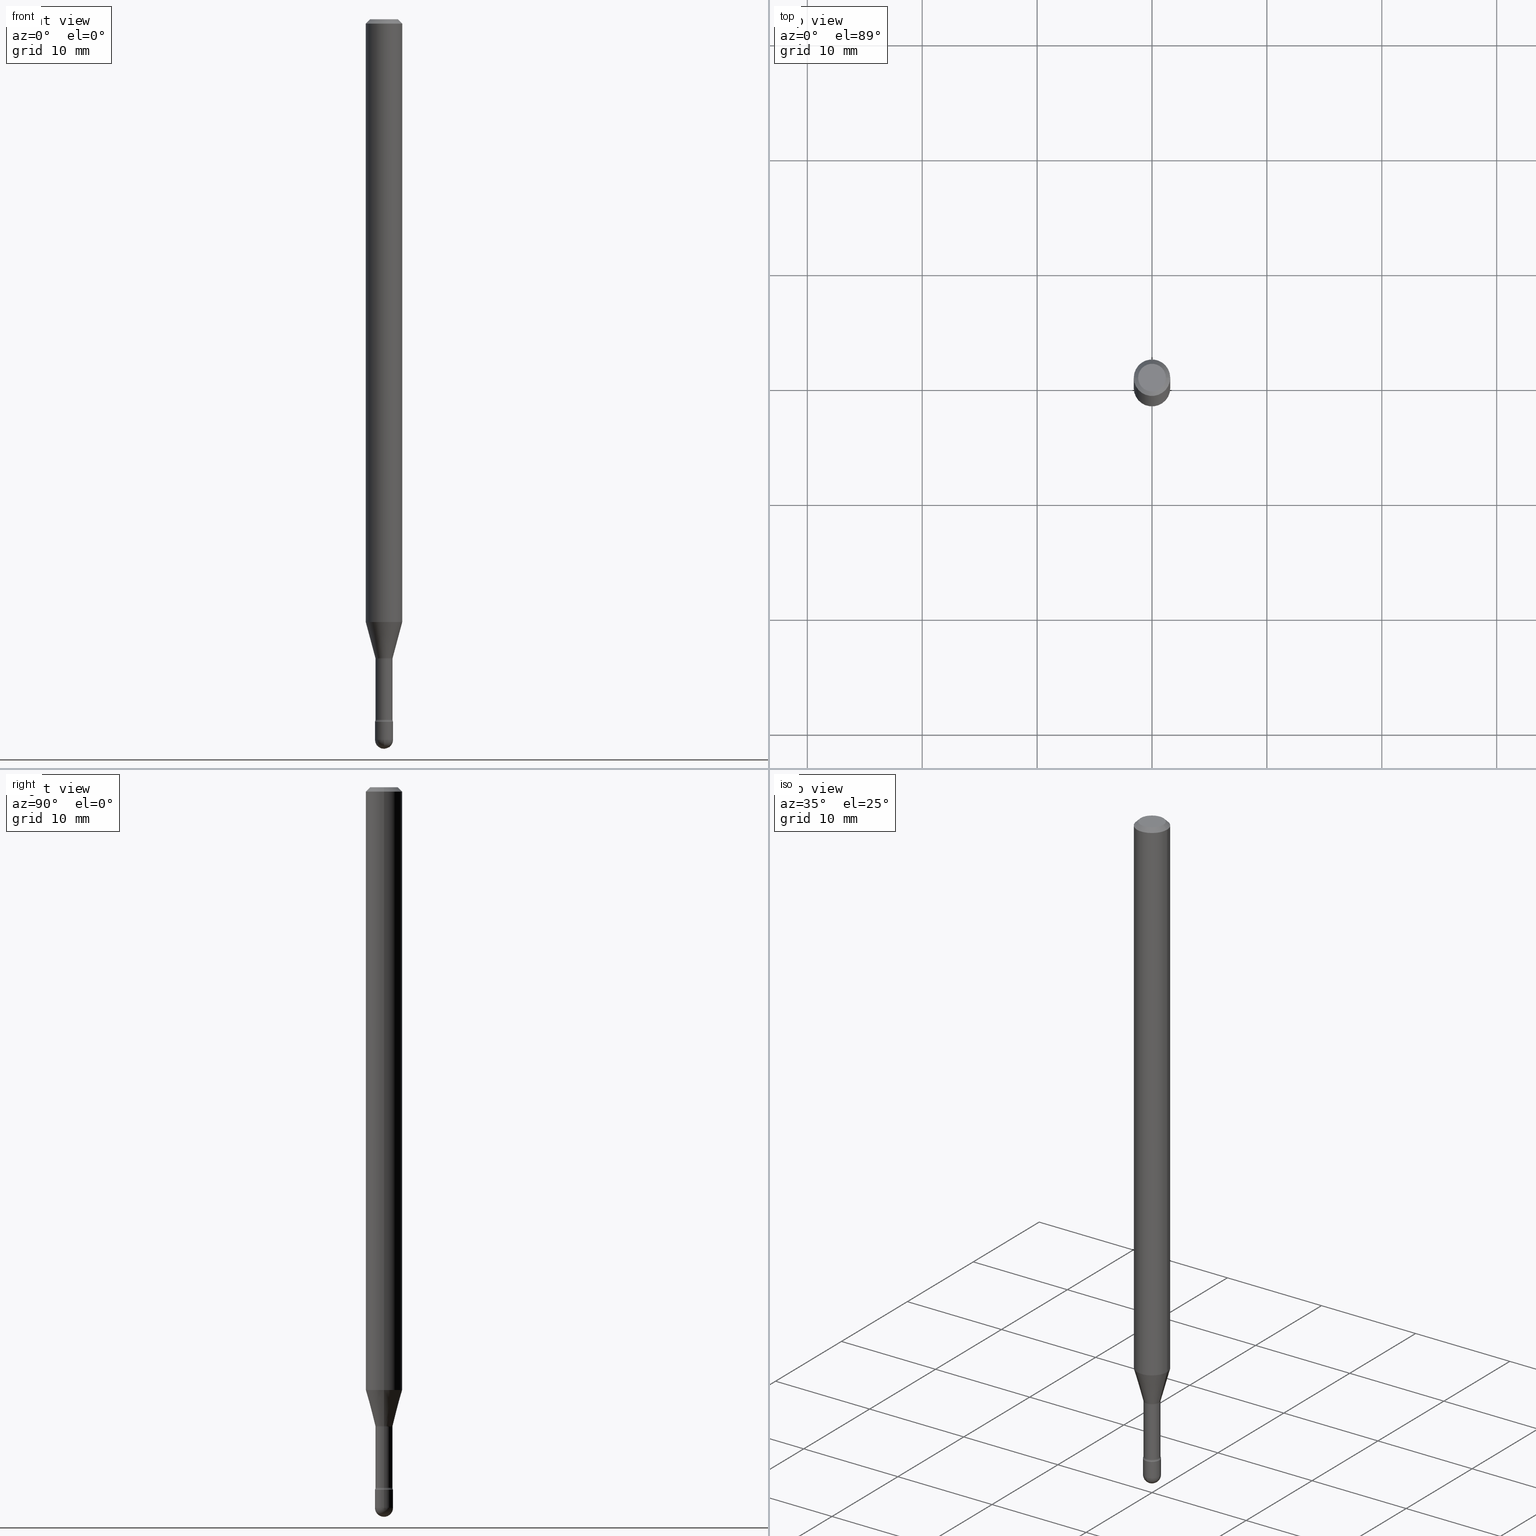
[diagram: canonical four-view strip — front | top / right | iso, engineering-drawing reading convention]
A machine part, canonical four-view strip (front | top / right | iso — engineering-drawing reading convention). The complete STEP part file that produces these views, byte-faithful:
ISO-10303-21;
HEADER;
FILE_DESCRIPTION (( 'STEP AP203' ),
    '1' );
FILE_NAME ('09502.STEP',
    '2024-04-09T23:57:02',
    ( '' ),
    ( '' ),
    'SwSTEP 2.0',
    'SolidWorks 2023',
    '' );
FILE_SCHEMA (( 'CONFIG_CONTROL_DESIGN' ));
ENDSEC;

DATA;
#1 = EDGE_CURVE ( 'NONE', #61, #333, #249, .T. ) ;
#2 =( NAMED_UNIT ( * ) PLANE_ANGLE_UNIT ( ) SI_UNIT ( $, .RADIAN. ) );
#3 = CARTESIAN_POINT ( 'NONE',  ( 2.164718430083331013E-16, 0.03099999999999159331, -2.407000000000000473 ) ) ;
#4 = DIRECTION ( 'NONE',  ( 2.438088387897960049E-29, -3.491481338843145188E-15, -1.000000000000000000 ) ) ;
#5 = DIRECTION ( 'NONE',  ( -2.445468806185136597E-29, 3.491481338843145583E-15, 1.000000000000000000 ) ) ;
#6 = CIRCLE ( 'NONE', #360, 0.03099999999999999978 ) ;
#7 = CARTESIAN_POINT ( 'NONE',  ( 0.03099999999999999978, -8.620467425603726988E-15, -2.407000000000000473 ) ) ;
#8 = AXIS2_PLACEMENT_3D ( 'NONE', #453, #220, #522 ) ;
#9 = DIRECTION ( 'NONE',  ( -2.445468806185136597E-29, 3.491481338843145583E-15, 1.000000000000000000 ) ) ;
#10 = CC_DESIGN_DATE_AND_TIME_ASSIGNMENT ( #125, #516, ( #229 ) ) ;
#11 = ORIENTED_EDGE ( 'NONE', *, *, #306, .T. ) ;
#12 = CARTESIAN_POINT ( 'NONE',  ( 6.037862482471103495E-29, -8.620467425603728566E-15, -2.469000000000000306 ) ) ;
#13 = ORIENTED_EDGE ( 'NONE', *, *, #396, .F. ) ;
#14 = CONICAL_SURFACE ( 'NONE', #548, 0.06250000000000000000, 0.7853981633974483900 ) ;
#15 = ORIENTED_EDGE ( 'NONE', *, *, #59, .F. ) ;
#16 = DIRECTION ( 'NONE',  ( 2.445468806185136597E-29, -3.491481338843145583E-15, -1.000000000000000000 ) ) ;
#17 = ORIENTED_EDGE ( 'NONE', *, *, #234, .F. ) ;
#18 = ADVANCED_FACE ( 'NONE', ( #395 ), #518, .T. ) ;
#19 = DIRECTION ( 'NONE',  ( 1.000000000000000000, -6.982962677686270655E-15, 0.000000000000000000 ) ) ;
#20 = ORIENTED_EDGE ( 'NONE', *, *, #1, .T. ) ;
#21 = CARTESIAN_POINT ( 'NONE',  ( 5.868595753920427457E-29, -8.378799397564700895E-15, -2.399783525791634897 ) ) ;
#22 = ORIENTED_EDGE ( 'NONE', *, *, #59, .T. ) ;
#23 = DIRECTION ( 'NONE',  ( -0.7071067811865475727, 2.468850131082257455E-15, -0.7071067811865474617 ) ) ;
#24 = AXIS2_PLACEMENT_3D ( 'NONE', #325, #156, #328 ) ;
#25 = LOCAL_TIME ( 19, 57, 2.000000000000000000, #244 ) ;
#26 = DIRECTION ( 'NONE',  ( 1.000000000000000000, -6.982962677686264344E-15, 4.883557194083112340E-29 ) ) ;
#27 = EDGE_CURVE ( 'NONE', #381, #295, #515, .T. ) ;
#28 = DATE_AND_TIME ( #478, #442 ) ;
#29 = APPROVAL_DATE_TIME ( #428, #367 ) ;
#30 = LINE ( 'NONE', #211, #327 ) ;
#31 = TOROIDAL_SURFACE ( 'NONE', #513, 0.04415000000000000174, 0.01499999999999999424 ) ;
#32 = CC_DESIGN_APPROVAL ( #367, ( #460 ) ) ;
#33 = APPROVAL_STATUS ( 'not_yet_approved' ) ;
#34 = ADVANCED_FACE ( 'NONE', ( #297 ), #525, .F. ) ;
#35 = SPHERICAL_SURFACE ( 'NONE', #358, 0.03099999999999987488 ) ;
#36 = EDGE_LOOP ( 'NONE', ( #40, #463, #162, #216 ) ) ;
#37 = PERSON_AND_ORGANIZATION ( #198, #312 ) ;
#38 = FACE_OUTER_BOUND ( 'NONE', #150, .T. ) ;
#39 = ORIENTED_EDGE ( 'NONE', *, *, #391, .F. ) ;
#40 = ORIENTED_EDGE ( 'NONE', *, *, #479, .T. ) ;
#41 = APPLICATION_CONTEXT ( 'configuration controlled 3d designs of mechanical parts and assemblies' ) ;
#42 = CARTESIAN_POINT ( 'NONE',  ( -0.03099999999999999978, 2.202682480856310560E-16, -1.524869877979020612E-30 ) ) ;
#43 = AXIS2_PLACEMENT_3D ( 'NONE', #507, #119, #208 ) ;
#44 = EDGE_CURVE ( 'NONE', #93, #443, #477, .T. ) ;
#45 = EDGE_LOOP ( 'NONE', ( #154, #103, #318, #248 ) ) ;
#46 = DIRECTION ( 'NONE',  ( 1.000000000000000000, -6.982962677686267499E-15, 4.884662768193073002E-29 ) ) ;
#47 = EDGE_LOOP ( 'NONE', ( #320, #237, #462, #369 ) ) ;
#48 = DIRECTION ( 'NONE',  ( 0.2588190451025209060, 1.565188264969625123E-15, 0.9659258262890682012 ) ) ;
#49 = CARTESIAN_POINT ( 'NONE',  ( -0.04415000000000000174, -7.339534447806482674E-15, -2.191974787463811136 ) ) ;
#50 = CARTESIAN_POINT ( 'NONE',  ( 5.360405966687044004E-29, -7.653239065644566278E-15, -2.191974787463811136 ) ) ;
#51 = AXIS2_PLACEMENT_3D ( 'NONE', #455, #538, #497 ) ;
#52 = EDGE_CURVE ( 'NONE', #359, #295, #240, .T. ) ;
#53 = DIRECTION ( 'NONE',  ( -2.445468806185136597E-29, 3.491481338843145583E-15, 1.000000000000000000 ) ) ;
#54 = CARTESIAN_POINT ( 'NONE',  ( -0.02966111260566397720, -7.428929256687707103E-15, -2.188092501787273214 ) ) ;
#55 = DIRECTION ( 'NONE',  ( -1.000000000000000000, 6.982962677686265922E-15, -4.876176775795935793E-29 ) ) ;
#56 = PLANE ( 'NONE',  #132 ) ;
#57 = AXIS2_PLACEMENT_3D ( 'NONE', #556, #71, #252 ) ;
#58 = VECTOR ( 'NONE', #48, 39.37007874015748143 ) ;
#59 = EDGE_CURVE ( 'NONE', #416, #352, #261, .T. ) ;
#60 = EDGE_LOOP ( 'NONE', ( #277, #384, #11, #180 ) ) ;
#61 = VERTEX_POINT ( 'NONE', #532 ) ;
#62 = ADVANCED_FACE ( 'NONE', ( #213 ), #31, .F. ) ;
#63 = DIRECTION ( 'NONE',  ( -2.445468806185136597E-29, 3.491481338843145583E-15, 1.000000000000000000 ) ) ;
#64 = VECTOR ( 'NONE', #316, 39.37007874015748143 ) ;
#65 = CC_DESIGN_SECURITY_CLASSIFICATION ( #514, ( #460 ) ) ;
#66 = DIRECTION ( 'NONE',  ( -1.000000000000000000, 7.105427357600993970E-15, 0.000000000000000000 ) ) ;
#67 = ORIENTED_EDGE ( 'NONE', *, *, #473, .F. ) ;
#68 = DATE_AND_TIME ( #339, #195 ) ;
#69 = CYLINDRICAL_SURFACE ( 'NONE', #24, 0.06250000000000000000 ) ;
#70 = PERSON_AND_ORGANIZATION_ROLE ( 'design_owner' ) ;
#71 = DIRECTION ( 'NONE',  ( -2.445468806185136597E-29, 3.491481338843145583E-15, 1.000000000000000000 ) ) ;
#72 = VERTEX_POINT ( 'NONE', #529 ) ;
#73 = TOROIDAL_SURFACE ( 'NONE', #397, 0.04415000000000000174, 0.01500000000000002720 ) ;
#74 = CARTESIAN_POINT ( 'NONE',  ( 5.886243416487624138E-29, -8.403995582595452657E-15, -2.407000000000000473 ) ) ;
#75 = PERSON_AND_ORGANIZATION ( #198, #312 ) ;
#76 = FACE_OUTER_BOUND ( 'NONE', #236, .T. ) ;
#77 = ORIENTED_EDGE ( 'NONE', *, *, #363, .T. ) ;
#78 = CARTESIAN_POINT ( 'NONE',  ( 6.037862482471103495E-29, -8.620467425603728566E-15, -2.469000000000000306 ) ) ;
#79 = EDGE_LOOP ( 'NONE', ( #403, #265, #138, #191 ) ) ;
#80 = EDGE_CURVE ( 'NONE', #420, #189, #505, .T. ) ;
#81 = EDGE_LOOP ( 'NONE', ( #283, #427, #196, #552 ) ) ;
#82 = AXIS2_PLACEMENT_3D ( 'NONE', #553, #476, #66 ) ;
#83 = CARTESIAN_POINT ( 'NONE',  ( 2.023552857353652888E-45, -2.889097183224559242E-31, -8.274703207154537794E-17 ) ) ;
#84 = ORIENTED_EDGE ( 'NONE', *, *, #379, .T. ) ;
#85 = DIRECTION ( 'NONE',  ( -2.445468806185136597E-29, 3.491481338843145583E-15, 1.000000000000000000 ) ) ;
#86 = DIRECTION ( 'NONE',  ( -2.445468806185136597E-29, 3.491481338843145583E-15, 1.000000000000000000 ) ) ;
#87 = ORIENTED_EDGE ( 'NONE', *, *, #396, .T. ) ;
#88 = DIMENSIONAL_EXPONENTS ( 1.000000000000000000, 0.000000000000000000, 0.000000000000000000, 0.000000000000000000, 0.000000000000000000, 0.000000000000000000, 0.000000000000000000 ) ;
#89 = LINE ( 'NONE', #350, #224 ) ;
#90 = EDGE_CURVE ( 'NONE', #189, #420, #131, .T. ) ;
#91 = FACE_OUTER_BOUND ( 'NONE', #45, .T. ) ;
#92 = DIRECTION ( 'NONE',  ( 1.000000000000000000, -6.982962677686262766E-15, 0.000000000000000000 ) ) ;
#93 = VERTEX_POINT ( 'NONE', #520 ) ;
#94 = CARTESIAN_POINT ( 'NONE',  ( 0.02966111260566397720, -7.846806579956877732E-15, -2.188092501787273214 ) ) ;
#95 = CIRCLE ( 'NONE', #215, 0.03099999999999987488 ) ;
#96 = AXIS2_PLACEMENT_3D ( 'NONE', #128, #565, #566 ) ;
#97 = FACE_OUTER_BOUND ( 'NONE', #114, .T. ) ;
#98 = DIRECTION ( 'NONE',  ( -1.000000000000000000, 7.105427357601001070E-15, -4.926315508542082329E-29 ) ) ;
#99 = EDGE_CURVE ( 'NONE', #352, #434, #164, .T. ) ;
#100 = CARTESIAN_POINT ( 'NONE',  ( 5.350911958168372383E-29, -7.639684137652876480E-15, -2.188092501787273214 ) ) ;
#101 = MANIFOLD_SOLID_BREP ( 'Body-Move/Copy2[2]', #399 ) ;
#102 = AXIS2_PLACEMENT_3D ( 'NONE', #263, #450, #383 ) ;
#103 = ORIENTED_EDGE ( 'NONE', *, *, #524, .T. ) ;
#104 = MANIFOLD_SOLID_BREP ( 'Body-Move/Copy2[1]', #433 ) ;
#105 = EDGE_LOOP ( 'NONE', ( #13, #130, #111, #557 ) ) ;
#106 = APPROVAL ( #562, 'UNSPECIFIED' ) ;
#107 = ORIENTED_EDGE ( 'NONE', *, *, #80, .F. ) ;
#108 = CC_DESIGN_PERSON_AND_ORGANIZATION_ASSIGNMENT ( #115, #425, ( #514 ) ) ;
#109 = DIRECTION ( 'NONE',  ( 6.982962677686265922E-15, 1.000000000000000000, 0.000000000000000000 ) ) ;
#110 = CIRCLE ( 'NONE', #431, 0.03099999999999999978 ) ;
#111 = ORIENTED_EDGE ( 'NONE', *, *, #554, .F. ) ;
#112 = PERSON_AND_ORGANIZATION ( #198, #312 ) ;
#113 = DIRECTION ( 'NONE',  ( 1.000000000000000000, -6.982962677686266711E-15, 4.876176775795935232E-29 ) ) ;
#114 = EDGE_LOOP ( 'NONE', ( #377, #222, #482, #338 ) ) ;
#115 = PERSON_AND_ORGANIZATION ( #198, #312 ) ;
#116 = DIRECTION ( 'NONE',  ( -2.445468806185136597E-29, 3.491481338843145583E-15, 1.000000000000000000 ) ) ;
#117 = ADVANCED_FACE ( 'NONE', ( #129 ), #365, .F. ) ;
#118 = APPLICATION_PROTOCOL_DEFINITION ( 'international standard', 'config_control_design', 1994, #536 ) ;
#119 = DIRECTION ( 'NONE',  ( -2.445468806185136597E-29, 3.491481338843145583E-15, 1.000000000000000000 ) ) ;
#120 = AXIS2_PLACEMENT_3D ( 'NONE', #74, #458, #233 ) ;
#121 = CC_DESIGN_APPROVAL ( #106, ( #229 ) ) ;
#122 = SPHERICAL_SURFACE ( 'NONE', #537, 0.03099999999999987488 ) ;
#123 = CARTESIAN_POINT ( 'NONE',  ( -1.169113584055446105E-44, 1.669184350826100908E-30, 4.780733988912460139E-16 ) ) ;
#124 = CARTESIAN_POINT ( 'NONE',  ( 5.886243416487624138E-29, -8.403995582595452657E-15, -2.407000000000000473 ) ) ;
#125 = DATE_AND_TIME ( #330, #366 ) ;
#126 = CC_DESIGN_PERSON_AND_ORGANIZATION_ASSIGNMENT ( #370, #555, ( #460 ) ) ;
#127 = CARTESIAN_POINT ( 'NONE',  ( 5.886243416487624138E-29, -8.403995582595452657E-15, -2.407000000000000473 ) ) ;
#128 = CARTESIAN_POINT ( 'NONE',  ( 0.04415000000000000174, -7.961536867864415641E-15, -2.191974787463811136 ) ) ;
#129 = FACE_OUTER_BOUND ( 'NONE', #47, .T. ) ;
#130 = ORIENTED_EDGE ( 'NONE', *, *, #495, .T. ) ;
#131 = CIRCLE ( 'NONE', #346, 0.03099999999999999978 ) ;
#132 = AXIS2_PLACEMENT_3D ( 'NONE', #3, #257, #404 ) ;
#133 = DIRECTION ( 'NONE',  ( 1.000000000000000000, -6.982962677686270655E-15, 0.000000000000000000 ) ) ;
#134 = EDGE_CURVE ( 'NONE', #201, #359, #523, .T. ) ;
#135 = CARTESIAN_POINT ( 'NONE',  ( -0.04749999999999999362, 3.578768372314208041E-16, -8.274703207154778150E-17 ) ) ;
#136 = DIRECTION ( 'NONE',  ( -2.445468806185136597E-29, 3.491481338843145583E-15, 1.000000000000000000 ) ) ;
#137 = LINE ( 'NONE', #491, #454 ) ;
#138 = ORIENTED_EDGE ( 'NONE', *, *, #52, .T. ) ;
#139 = DIRECTION ( 'NONE',  ( -2.445468806185136597E-29, 3.491481338843145583E-15, 1.000000000000000000 ) ) ;
#140 = ORIENTED_EDGE ( 'NONE', *, *, #27, .T. ) ;
#141 = CIRCLE ( 'NONE', #501, 0.03099999999999999978 ) ;
#142 = DIRECTION ( 'NONE',  ( -2.445468806185136597E-29, 3.491481338843145583E-15, 1.000000000000000000 ) ) ;
#143 = CARTESIAN_POINT ( 'NONE',  ( 5.350911958168372383E-29, -7.639684137652876480E-15, -2.188092501787273214 ) ) ;
#144 = EDGE_CURVE ( 'NONE', #315, #416, #110, .T. ) ;
#145 = DIRECTION ( 'NONE',  ( -1.000000000000000000, 6.982962677686266711E-15, 0.000000000000000000 ) ) ;
#146 = CARTESIAN_POINT ( 'NONE',  ( 0.03099999999999999978, -2.164718430082742572E-16, 1.511614800496739984E-30 ) ) ;
#147 = CIRCLE ( 'NONE', #475, 0.02966111260566397720 ) ;
#148 = DIRECTION ( 'NONE',  ( 1.000000000000000000, -6.982962677686266711E-15, 0.000000000000000000 ) ) ;
#149 = EDGE_CURVE ( 'NONE', #72, #359, #502, .T. ) ;
#150 = EDGE_LOOP ( 'NONE', ( #15, #398, #20, #254, #517 ) ) ;
#151 = CARTESIAN_POINT ( 'NONE',  ( 0.03099999999999999978, -8.728703347107864943E-15, -2.469000000000000306 ) ) ;
#152 = CC_DESIGN_DATE_AND_TIME_ASSIGNMENT ( #28, #203, ( #514 ) ) ;
#153 = DIRECTION ( 'NONE',  ( -2.438088387897960049E-29, 3.491481338843145188E-15, 1.000000000000000000 ) ) ;
#154 = ORIENTED_EDGE ( 'NONE', *, *, #149, .F. ) ;
#155 = CALENDAR_DATE ( 2024, 9, 4 ) ;
#156 = DIRECTION ( 'NONE',  ( -2.445468806185136597E-29, 3.491481338843145583E-15, 1.000000000000000000 ) ) ;
#157 = AXIS2_PLACEMENT_3D ( 'NONE', #474, #245, #375 ) ;
#158 = APPROVAL_ROLE ( '' ) ;
#159 = EDGE_CURVE ( 'NONE', #434, #352, #205, .T. ) ;
#160 = DIRECTION ( 'NONE',  ( 0.7071067811865475727, -7.319954787623256045E-15, -0.7071067811865474617 ) ) ;
#161 = CARTESIAN_POINT ( 'NONE',  ( -0.06250000000000000000, -6.767691557445882017E-15, -2.065536105567578051 ) ) ;
#162 = ORIENTED_EDGE ( 'NONE', *, *, #464, .F. ) ;
#163 = SHAPE_DEFINITION_REPRESENTATION ( #218, #406 ) ;
#164 = CIRCLE ( 'NONE', #193, 0.03099999999999999978 ) ;
#165 = ADVANCED_FACE ( 'NONE', ( #183 ), #272, .T. ) ;
#166 = VECTOR ( 'NONE', #260, 39.37007874015748143 ) ;
#167 = APPROVAL_ROLE ( '' ) ;
#168 = DIRECTION ( 'NONE',  ( 1.000000000000000000, -6.982962677686270655E-15, 0.000000000000000000 ) ) ;
#169 = ORIENTED_EDGE ( 'NONE', *, *, #506, .F. ) ;
#170 = CARTESIAN_POINT ( 'NONE',  ( 0.02966111260566397720, -7.846806579956877732E-15, -2.188092501787273214 ) ) ;
#171 = DIRECTION ( 'NONE',  ( -2.445468806185136597E-29, 3.491481338843145583E-15, 1.000000000000000000 ) ) ;
#172 = CARTESIAN_POINT ( 'NONE',  ( 0.03099999999999999978, -8.620467425603726988E-15, -2.407000000000000473 ) ) ;
#173 = DIRECTION ( 'NONE',  ( 1.000000000000000000, -6.982962677686266711E-15, 4.852736867747366207E-29 ) ) ;
#174 = PRODUCT ( '09502', '09502', '', ( #334 ) ) ;
#175 = DIRECTION ( 'NONE',  ( 1.000000000000000000, -6.982962677686269077E-15, 0.000000000000000000 ) ) ;
#176 = AXIS2_PLACEMENT_3D ( 'NONE', #498, #418, #235 ) ;
#177 = CIRCLE ( 'NONE', #247, 0.04749999999999999362 ) ;
#178 = EDGE_CURVE ( 'NONE', #241, #295, #543, .T. ) ;
#179 = ORIENTED_EDGE ( 'NONE', *, *, #439, .F. ) ;
#180 = ORIENTED_EDGE ( 'NONE', *, *, #212, .F. ) ;
#181 = DIRECTION ( 'NONE',  ( 1.000000000000000000, -6.982962677686270655E-15, 0.000000000000000000 ) ) ;
#182 = ORIENTED_EDGE ( 'NONE', *, *, #410, .T. ) ;
#183 = FACE_OUTER_BOUND ( 'NONE', #186, .T. ) ;
#184 = DIRECTION ( 'NONE',  ( -7.105427357601001070E-15, -1.000000000000000000, 0.000000000000000000 ) ) ;
#185 = ADVANCED_FACE ( 'NONE', ( #535 ), #214, .T. ) ;
#186 = EDGE_LOOP ( 'NONE', ( #264, #341, #217, #192 ) ) ;
#187 = CIRCLE ( 'NONE', #459, 0.02915000000000000577 ) ;
#188 = DIRECTION ( 'NONE',  ( 1.000000000000000000, -6.982962677686269077E-15, 0.000000000000000000 ) ) ;
#189 = VERTEX_POINT ( 'NONE', #415 ) ;
#190 = DIRECTION ( 'NONE',  ( 7.105427357601001859E-15, 1.000000000000000000, -3.491481338843145583E-15 ) ) ;
#191 = ORIENTED_EDGE ( 'NONE', *, *, #27, .F. ) ;
#192 = ORIENTED_EDGE ( 'NONE', *, *, #44, .T. ) ;
#193 = AXIS2_PLACEMENT_3D ( 'NONE', #127, #53, #444 ) ;
#194 = FACE_OUTER_BOUND ( 'NONE', #79, .T. ) ;
#195 = LOCAL_TIME ( 19, 57, 2.000000000000000000, #289 ) ;
#196 = ORIENTED_EDGE ( 'NONE', *, *, #306, .F. ) ;
#197 = CARTESIAN_POINT ( 'NONE',  ( 6.037862482471103495E-29, -8.620467425603728566E-15, -2.469000000000000306 ) ) ;
#198 = PERSON ( 'UNSPECIFIED', 'UNSPECIFIED', 'UNSPECIFIED', ('UNSPECIFIED'), ('UNSPECIFIED'), ('UNSPECIFIED') ) ;
#199 = COORDINATED_UNIVERSAL_TIME_OFFSET ( 5, 0, .BEHIND. ) ;
#200 = CARTESIAN_POINT ( 'NONE',  ( 6.114997523211070133E-29, -8.726805144569186876E-15, -2.500000000000000000 ) ) ;
#201 = VERTEX_POINT ( 'NONE', #228 ) ;
#202 = EDGE_CURVE ( 'NONE', #241, #72, #187, .T. ) ;
#203 = DATE_TIME_ROLE ( 'classification_date' ) ;
#204 = DIRECTION ( 'NONE',  ( 1.000000000000000000, -6.982962677686265922E-15, 4.876176775795935793E-29 ) ) ;
#205 = CIRCLE ( 'NONE', #120, 0.03099999999999999978 ) ;
#206 = LOCAL_TIME ( 19, 57, 2.000000000000000000, #199 ) ;
#207 = CALENDAR_DATE ( 2024, 9, 4 ) ;
#208 = DIRECTION ( 'NONE',  ( 1.000000000000000000, -6.982962677686262766E-15, 0.000000000000000000 ) ) ;
#209 = ORIENTED_EDGE ( 'NONE', *, *, #524, .F. ) ;
#210 = APPROVAL_STATUS ( 'not_yet_approved' ) ;
#211 = CARTESIAN_POINT ( 'NONE',  ( 0.06250000000000000000, -4.811533449433681963E-16, -0.01500000000000008271 ) ) ;
#212 = EDGE_CURVE ( 'NONE', #521, #93, #313, .T. ) ;
#213 = FACE_OUTER_BOUND ( 'NONE', #362, .T. ) ;
#214 = CONICAL_SURFACE ( 'NONE', #176, 0.02966111260566397720, 0.2617993877991495744 ) ;
#215 = AXIS2_PLACEMENT_3D ( 'NONE', #12, #98, #184 ) ;
#216 = ORIENTED_EDGE ( 'NONE', *, *, #534, .F. ) ;
#217 = ORIENTED_EDGE ( 'NONE', *, *, #212, .T. ) ;
#218 = PRODUCT_DEFINITION_SHAPE ( 'NONE', 'NONE',  #229 ) ;
#219 = CARTESIAN_POINT ( 'NONE',  ( -0.03099999999999999978, -8.291963256013958569E-15, -2.469000000000000306 ) ) ;
#220 = DIRECTION ( 'NONE',  ( -2.445468806185136597E-29, 3.491481338843145583E-15, 1.000000000000000000 ) ) ;
#221 = ADVANCED_FACE ( 'NONE', ( #194 ), #546, .F. ) ;
#222 = ORIENTED_EDGE ( 'NONE', *, *, #149, .T. ) ;
#223 = DIRECTION ( 'NONE',  ( -6.982962677686266711E-15, -1.000000000000000000, 3.491481338843145583E-15 ) ) ;
#224 = VECTOR ( 'NONE', #526, 39.37007874015748143 ) ;
#225 = AXIS2_PLACEMENT_3D ( 'NONE', #492, #302, #173 ) ;
#226 = DIRECTION ( 'NONE',  ( -0.2588190451025209060, 5.211531920934547097E-15, 0.9659258262890682012 ) ) ;
#227 = CARTESIAN_POINT ( 'NONE',  ( 5.886243416487624138E-29, -8.403995582595452657E-15, -2.407000000000000473 ) ) ;
#228 = CARTESIAN_POINT ( 'NONE',  ( -0.02966111260566397720, -7.098310407066794166E-15, -2.188092501787273214 ) ) ;
#229 = PRODUCT_DEFINITION ( 'UNKNOWN', '', #460, #387 ) ;
#230 = VERTEX_POINT ( 'NONE', #161 ) ;
#231 = AXIS2_PLACEMENT_3D ( 'NONE', #559, #116, #113 ) ;
#232 = CONICAL_SURFACE ( 'NONE', #282, 0.02966111260566397720, 0.2617993877991495744 ) ;
#233 = DIRECTION ( 'NONE',  ( 1.000000000000000000, -6.982962677686270655E-15, 0.000000000000000000 ) ) ;
#234 = EDGE_CURVE ( 'NONE', #230, #348, #267, .T. ) ;
#235 = DIRECTION ( 'NONE',  ( 1.000000000000000000, -6.982962677686269077E-15, 0.000000000000000000 ) ) ;
#236 = EDGE_LOOP ( 'NONE', ( #392, #287 ) ) ;
#237 = ORIENTED_EDGE ( 'NONE', *, *, #202, .F. ) ;
#238 = CIRCLE ( 'NONE', #311, 0.03099999999999987488 ) ;
#239 = CARTESIAN_POINT ( 'NONE',  ( 0.000000000000000000, 0.000000000000000000, 0.000000000000000000 ) ) ;
#240 = CIRCLE ( 'NONE', #256, 0.02914999999999999883 ) ;
#241 = VERTEX_POINT ( 'NONE', #278 ) ;
#242 = DIRECTION ( 'NONE',  ( 2.445468806185136597E-29, -3.491481338843145583E-15, -1.000000000000000000 ) ) ;
#243 = ADVANCED_FACE ( 'NONE', ( #281 ), #69, .T. ) ;
#244 = COORDINATED_UNIVERSAL_TIME_OFFSET ( 5, 0, .BEHIND. ) ;
#245 = DIRECTION ( 'NONE',  ( -2.445468806185136597E-29, 3.491481338843145583E-15, 1.000000000000000000 ) ) ;
#246 = AXIS2_PLACEMENT_3D ( 'NONE', #356, #16, #145 ) ;
#247 = AXIS2_PLACEMENT_3D ( 'NONE', #83, #445, #46 ) ;
#248 = ORIENTED_EDGE ( 'NONE', *, *, #52, .F. ) ;
#249 = CIRCLE ( 'NONE', #8, 0.03099999999999999978 ) ;
#250 = APPROVAL_DATE_TIME ( #68, #106 ) ;
#251 = ADVANCED_FACE ( 'NONE', ( #467 ), #424, .T. ) ;
#252 = DIRECTION ( 'NONE',  ( 1.000000000000000000, -6.982962677686267499E-15, 4.884662768193073002E-29 ) ) ;
#253 = VERTEX_POINT ( 'NONE', #437 ) ;
#254 = ORIENTED_EDGE ( 'NONE', *, *, #506, .T. ) ;
#255 = CARTESIAN_POINT ( 'NONE',  ( 3.668203209277725232E-31, -5.237222008264747365E-17, -0.01500000000000008271 ) ) ;
#256 = AXIS2_PLACEMENT_3D ( 'NONE', #50, #171, #300 ) ;
#257 = DIRECTION ( 'NONE',  ( -2.438088387897960049E-29, 3.491481338843145188E-15, 1.000000000000000000 ) ) ;
#258 = EDGE_LOOP ( 'NONE', ( #275, #87, #508, #344 ) ) ;
#259 = ADVANCED_FACE ( 'NONE', ( #38 ), #504, .T. ) ;
#260 = DIRECTION ( 'NONE',  ( -2.445468806185136877E-29, 3.491481338843145188E-15, 1.000000000000000000 ) ) ;
#261 = LINE ( 'NONE', #42, #490 ) ;
#262 = CYLINDRICAL_SURFACE ( 'NONE', #412, 0.02915000000000000230 ) ;
#263 = CARTESIAN_POINT ( 'NONE',  ( 5.868595753920427457E-29, -8.378799397564702473E-15, -2.399783525791635341 ) ) ;
#264 = ORIENTED_EDGE ( 'NONE', *, *, #280, .F. ) ;
#265 = ORIENTED_EDGE ( 'NONE', *, *, #134, .T. ) ;
#266 = DIRECTION ( 'NONE',  ( 1.000000000000000000, -6.982962677686270655E-15, 0.000000000000000000 ) ) ;
#267 = CIRCLE ( 'NONE', #43, 0.06250000000000000000 ) ;
#268 = ADVANCED_FACE ( 'NONE', ( #286 ), #35, .T. ) ;
#269 = FACE_OUTER_BOUND ( 'NONE', #545, .T. ) ;
#270 = DIRECTION ( 'NONE',  ( 6.982962677686265922E-15, 1.000000000000000000, 0.000000000000000000 ) ) ;
#271 = CC_DESIGN_PERSON_AND_ORGANIZATION_ASSIGNMENT ( #37, #558, ( #460 ) ) ;
#272 = CONICAL_SURFACE ( 'NONE', #246, 0.06250000000000000000, 0.7853981633974483900 ) ;
#273 = CIRCLE ( 'NONE', #422, 0.02966111260566397720 ) ;
#274 = ADVANCED_FACE ( 'NONE', ( #285 ), #14, .T. ) ;
#275 = ORIENTED_EDGE ( 'NONE', *, *, #495, .F. ) ;
#276 = DIRECTION ( 'NONE',  ( -2.445468806185136597E-29, 3.491481338843145583E-15, 1.000000000000000000 ) ) ;
#277 = ORIENTED_EDGE ( 'NONE', *, *, #332, .F. ) ;
#278 = CARTESIAN_POINT ( 'NONE',  ( 0.02915000000000000577, -8.582352759619256888E-15, -2.399783525791634897 ) ) ;
#279 = ORIENTED_EDGE ( 'NONE', *, *, #159, .F. ) ;
#280 = EDGE_CURVE ( 'NONE', #253, #443, #30, .T. ) ;
#281 = FACE_OUTER_BOUND ( 'NONE', #461, .T. ) ;
#282 = AXIS2_PLACEMENT_3D ( 'NONE', #143, #347, #314 ) ;
#283 = ORIENTED_EDGE ( 'NONE', *, *, #464, .T. ) ;
#284 = COORDINATED_UNIVERSAL_TIME_OFFSET ( 5, 0, .BEHIND. ) ;
#285 = FACE_OUTER_BOUND ( 'NONE', #60, .T. ) ;
#286 = FACE_OUTER_BOUND ( 'NONE', #258, .T. ) ;
#287 = ORIENTED_EDGE ( 'NONE', *, *, #99, .T. ) ;
#288 = EDGE_CURVE ( 'NONE', #72, #189, #441, .T. ) ;
#289 = COORDINATED_UNIVERSAL_TIME_OFFSET ( 5, 0, .BEHIND. ) ;
#290 = CARTESIAN_POINT ( 'NONE',  ( 5.360405966687044004E-29, -7.653239065644566278E-15, -2.191974787463811136 ) ) ;
#291 = CIRCLE ( 'NONE', #373, 0.01499999999999999424 ) ;
#292 = AXIS2_PLACEMENT_3D ( 'NONE', #239, #63, #469 ) ;
#293 = PRODUCT_RELATED_PRODUCT_CATEGORY ( 'detail', '', ( #174 ) ) ;
#294 =( LENGTH_UNIT ( ) NAMED_UNIT ( * ) SI_UNIT ( $, .METRE. ) );
#295 = VERTEX_POINT ( 'NONE', #560 ) ;
#296 = COORDINATED_UNIVERSAL_TIME_OFFSET ( 5, 0, .BEHIND. ) ;
#297 = FACE_OUTER_BOUND ( 'NONE', #435, .T. ) ;
#298 =( NAMED_UNIT ( * ) SI_UNIT ( $, .STERADIAN. ) SOLID_ANGLE_UNIT ( ) );
#299 = ADVANCED_FACE ( 'NONE', ( #76 ), #331, .T. ) ;
#300 = DIRECTION ( 'NONE',  ( 1.000000000000000000, -6.982962677686268288E-15, 0.000000000000000000 ) ) ;
#301 = AXIS2_PLACEMENT_3D ( 'NONE', #340, #483, #530 ) ;
#302 = DIRECTION ( 'NONE',  ( -2.445468806185136597E-29, 3.491481338843145583E-15, 1.000000000000000000 ) ) ;
#303 = DIRECTION ( 'NONE',  ( -2.445468806185136597E-29, 3.491481338843145583E-15, 1.000000000000000000 ) ) ;
#304 = DIRECTION ( 'NONE',  ( -2.445468806185136597E-29, 3.491481338843145583E-15, 1.000000000000000000 ) ) ;
#305 = ORIENTED_EDGE ( 'NONE', *, *, #44, .F. ) ;
#306 = EDGE_CURVE ( 'NONE', #443, #93, #421, .T. ) ;
#307 = VERTEX_POINT ( 'NONE', #200 ) ;
#308 = DIRECTION ( 'NONE',  ( -2.445468806185136597E-29, 3.491481338843145583E-15, 1.000000000000000000 ) ) ;
#309 = CARTESIAN_POINT ( 'NONE',  ( 3.316907271900976096E-16, 0.04749999999999999362, 3.181781981480094004E-17 ) ) ;
#310 = DIRECTION ( 'NONE',  ( 1.000000000000000000, -6.982962677686265922E-15, 4.883557194083112340E-29 ) ) ;
#311 = AXIS2_PLACEMENT_3D ( 'NONE', #533, #310, #270 ) ;
#312 = ORGANIZATION ( 'UNSPECIFIED', 'UNSPECIFIED', '' ) ;
#313 = LINE ( 'NONE', #496, #499 ) ;
#314 = DIRECTION ( 'NONE',  ( 1.000000000000000000, -6.982962677686269077E-15, 0.000000000000000000 ) ) ;
#315 = VERTEX_POINT ( 'NONE', #426 ) ;
#316 = DIRECTION ( 'NONE',  ( -2.445468806185136877E-29, 3.491481338843145188E-15, 1.000000000000000000 ) ) ;
#317 = ADVANCED_FACE ( 'NONE', ( #509 ), #73, .F. ) ;
#318 = ORIENTED_EDGE ( 'NONE', *, *, #178, .T. ) ;
#319 = APPROVAL_PERSON_ORGANIZATION ( #372, #544, #158 ) ;
#320 = ORIENTED_EDGE ( 'NONE', *, *, #288, .F. ) ;
#321 = DIRECTION ( 'NONE',  ( 1.000000000000000000, -6.982962677686264344E-15, 4.883557194083112340E-29 ) ) ;
#322 = ORIENTED_EDGE ( 'NONE', *, *, #234, .T. ) ;
#323 = CC_DESIGN_PERSON_AND_ORGANIZATION_ASSIGNMENT ( #112, #512, ( #229 ) ) ;
#324 = UNCERTAINTY_MEASURE_WITH_UNIT (LENGTH_MEASURE( 1.000000000000000082E-05 ), #449, 'distance_accuracy_value', 'NONE');
#325 = CARTESIAN_POINT ( 'NONE',  ( -1.169113584055446105E-44, 1.669184350826100908E-30, 4.780733988912460139E-16 ) ) ;
#326 = SECURITY_CLASSIFICATION_LEVEL ( 'unclassified' ) ;
#327 = VECTOR ( 'NONE', #160, 39.37007874015748143 ) ;
#328 = DIRECTION ( 'NONE',  ( 1.000000000000000000, -6.982962677686266711E-15, 4.852736867747366207E-29 ) ) ;
#329 = APPROVAL_PERSON_ORGANIZATION ( #436, #367, #471 ) ;
#330 = CALENDAR_DATE ( 2024, 9, 4 ) ;
#331 = PLANE ( 'NONE',  #409 ) ;
#332 = EDGE_CURVE ( 'NONE', #253, #521, #451, .T. ) ;
#333 = VERTEX_POINT ( 'NONE', #151 ) ;
#334 = MECHANICAL_CONTEXT ( 'NONE', #41, 'mechanical' ) ;
#335 = DIRECTION ( 'NONE',  ( -1.000000000000000000, 6.982962677686265922E-15, -4.883557194083112901E-29 ) ) ;
#336 = AXIS2_PLACEMENT_3D ( 'NONE', #49, #190, #364 ) ;
#337 = CIRCLE ( 'NONE', #376, 0.06250000000000000000 ) ;
#338 = ORIENTED_EDGE ( 'NONE', *, *, #178, .F. ) ;
#339 = CALENDAR_DATE ( 2024, 9, 4 ) ;
#340 = CARTESIAN_POINT ( 'NONE',  ( 0.000000000000000000, 0.000000000000000000, 0.000000000000000000 ) ) ;
#341 = ORIENTED_EDGE ( 'NONE', *, *, #511, .F. ) ;
#342 = ADVANCED_FACE ( 'NONE', ( #432 ), #122, .T. ) ;
#343 = DIRECTION ( 'NONE',  ( 1.000000000000000000, -6.982962677686270655E-15, 0.000000000000000000 ) ) ;
#344 = ORIENTED_EDGE ( 'NONE', *, *, #1, .F. ) ;
#345 = DIRECTION ( 'NONE',  ( -2.445468806185136877E-29, 3.491481338843145188E-15, 1.000000000000000000 ) ) ;
#346 = AXIS2_PLACEMENT_3D ( 'NONE', #124, #85, #168 ) ;
#347 = DIRECTION ( 'NONE',  ( -2.445468806185136597E-29, 3.491481338843145583E-15, 1.000000000000000000 ) ) ;
#348 = VERTEX_POINT ( 'NONE', #541 ) ;
#349 = CIRCLE ( 'NONE', #389, 0.02915000000000000577 ) ;
#350 = CARTESIAN_POINT ( 'NONE',  ( 0.06250000000000000000, -4.364351673553899931E-16, 4.780733988912490708E-16 ) ) ;
#351 = CARTESIAN_POINT ( 'NONE',  ( 0.06250000000000000000, -4.888073874380391431E-16, -0.01500000000000008271 ) ) ;
#352 = VERTEX_POINT ( 'NONE', #405 ) ;
#353 = CARTESIAN_POINT ( 'NONE',  ( -0.02914999999999999883, -7.808896024130564316E-15, -2.191974787463811136 ) ) ;
#354 = ORIENTED_EDGE ( 'NONE', *, *, #90, .F. ) ;
#355 = DIRECTION ( 'NONE',  ( -1.000000000000000000, 6.982962677686265922E-15, -4.883557194083112901E-29 ) ) ;
#356 = CARTESIAN_POINT ( 'NONE',  ( 3.668203209277725232E-31, -5.237222008264747365E-17, -0.01500000000000008271 ) ) ;
#357 = FACE_OUTER_BOUND ( 'NONE', #36, .T. ) ;
#358 = AXIS2_PLACEMENT_3D ( 'NONE', #197, #335, #109 ) ;
#359 = VERTEX_POINT ( 'NONE', #353 ) ;
#360 = AXIS2_PLACEMENT_3D ( 'NONE', #527, #136, #133 ) ;
#361 = LINE ( 'NONE', #146, #166 ) ;
#362 = EDGE_LOOP ( 'NONE', ( #209, #485, #411, #39 ) ) ;
#363 = EDGE_CURVE ( 'NONE', #201, #381, #147, .T. ) ;
#364 = DIRECTION ( 'NONE',  ( -1.000000000000000000, 7.105427357600978193E-15, 0.000000000000000000 ) ) ;
#365 = TOROIDAL_SURFACE ( 'NONE', #102, 0.04415000000000000174, 0.01499999999999999424 ) ;
#366 = LOCAL_TIME ( 19, 57, 2.000000000000000000, #284 ) ;
#367 = APPROVAL ( #33, 'UNSPECIFIED' ) ;
#368 = DIRECTION ( 'NONE',  ( -1.000000000000000000, 6.982962677686266711E-15, 0.000000000000000000 ) ) ;
#369 = ORIENTED_EDGE ( 'NONE', *, *, #80, .T. ) ;
#370 = PERSON_AND_ORGANIZATION ( #198, #312 ) ;
#371 = CARTESIAN_POINT ( 'NONE',  ( 5.360405966687044004E-29, -7.653239065644566278E-15, -2.191974787463811136 ) ) ;
#372 = PERSON_AND_ORGANIZATION ( #198, #312 ) ;
#373 = AXIS2_PLACEMENT_3D ( 'NONE', #448, #223, #266 ) ;
#374 = AXIS2_PLACEMENT_3D ( 'NONE', #531, #308, #457 ) ;
#375 = DIRECTION ( 'NONE',  ( 1.000000000000000000, -6.982962677686266711E-15, 0.000000000000000000 ) ) ;
#376 = AXIS2_PLACEMENT_3D ( 'NONE', #489, #139, #92 ) ;
#377 = ORIENTED_EDGE ( 'NONE', *, *, #202, .T. ) ;
#378 = DATE_AND_TIME ( #207, #25 ) ;
#379 = EDGE_CURVE ( 'NONE', #348, #443, #89, .T. ) ;
#380 = CARTESIAN_POINT ( 'NONE',  ( 5.886243416487624138E-29, -8.403995582595452657E-15, -2.407000000000000473 ) ) ;
#381 = VERTEX_POINT ( 'NONE', #94 ) ;
#382 = APPROVAL_DATE_TIME ( #378, #544 ) ;
#383 = DIRECTION ( 'NONE',  ( 1.000000000000000000, -6.982962677686268288E-15, 4.883557194083113462E-29 ) ) ;
#384 = ORIENTED_EDGE ( 'NONE', *, *, #280, .T. ) ;
#385 = PERSON_AND_ORGANIZATION ( #198, #312 ) ;
#386 = APPLICATION_PROTOCOL_DEFINITION ( 'international standard', 'config_control_design', 1994, #41 ) ;
#387 = DESIGN_CONTEXT ( 'detailed design', #536, 'design' ) ;
#388 = CIRCLE ( 'NONE', #51, 0.02914999999999999883 ) ;
#389 = AXIS2_PLACEMENT_3D ( 'NONE', #486, #86, #551 ) ;
#390 = DIRECTION ( 'NONE',  ( 1.000000000000000000, -6.982962677686268288E-15, 4.883557194083113462E-29 ) ) ;
#391 = EDGE_CURVE ( 'NONE', #241, #420, #291, .T. ) ;
#392 = ORIENTED_EDGE ( 'NONE', *, *, #159, .T. ) ;
#393 = EDGE_LOOP ( 'NONE', ( #179, #77, #466, #17 ) ) ;
#394 = DIRECTION ( 'NONE',  ( -2.445468806185136597E-29, 3.491481338843145583E-15, 1.000000000000000000 ) ) ;
#395 = FACE_OUTER_BOUND ( 'NONE', #81, .T. ) ;
#396 = EDGE_CURVE ( 'NONE', #307, #315, #238, .T. ) ;
#397 = AXIS2_PLACEMENT_3D ( 'NONE', #371, #550, #321 ) ;
#398 = ORIENTED_EDGE ( 'NONE', *, *, #554, .T. ) ;
#399 = CLOSED_SHELL ( 'NONE', ( #221, #456, #62, #274, #18, #500, #185, #243, #165, #34, #488, #117, #561, #317 ) ) ;
#400 = LENGTH_MEASURE_WITH_UNIT ( LENGTH_MEASURE( 0.02539999999999999897 ), #294 );
#401 = CARTESIAN_POINT ( 'NONE',  ( 6.037862482471103495E-29, -8.620467425603728566E-15, -2.469000000000000306 ) ) ;
#402 = CARTESIAN_POINT ( 'NONE',  ( 5.868595753920427457E-29, -8.378799397564702473E-15, -2.399783525791635341 ) ) ;
#403 = ORIENTED_EDGE ( 'NONE', *, *, #363, .F. ) ;
#404 = DIRECTION ( 'NONE',  ( 1.000000000000000000, -6.982962677686265922E-15, 4.876176775795935793E-29 ) ) ;
#405 = CARTESIAN_POINT ( 'NONE',  ( -0.03099999999999999978, -8.291963256013958569E-15, -2.407000000000000473 ) ) ;
#406 = ADVANCED_BREP_SHAPE_REPRESENTATION ( '09502', ( #104, #101, #301 ), #493 ) ;
#407 = DIRECTION ( 'NONE',  ( -2.445468806185136597E-29, 3.491481338843145583E-15, 1.000000000000000000 ) ) ;
#408 = DIRECTION ( 'NONE',  ( 6.982962677686265922E-15, 1.000000000000000000, 0.000000000000000000 ) ) ;
#409 = AXIS2_PLACEMENT_3D ( 'NONE', #380, #153, #204 ) ;
#410 = EDGE_CURVE ( 'NONE', #295, #359, #388, .T. ) ;
#411 = ORIENTED_EDGE ( 'NONE', *, *, #90, .T. ) ;
#412 = AXIS2_PLACEMENT_3D ( 'NONE', #123, #394, #519 ) ;
#413 = CARTESIAN_POINT ( 'NONE',  ( 6.037862482471103495E-29, -8.620467425603728566E-15, -2.469000000000000306 ) ) ;
#414 = ORIENTED_EDGE ( 'NONE', *, *, #430, .T. ) ;
#415 = CARTESIAN_POINT ( 'NONE',  ( -0.03099999999999999978, -8.183727334509820615E-15, -2.407000000000000473 ) ) ;
#416 = VERTEX_POINT ( 'NONE', #219 ) ;
#417 = CC_DESIGN_PERSON_AND_ORGANIZATION_ASSIGNMENT ( #75, #70, ( #174 ) ) ;
#418 = DIRECTION ( 'NONE',  ( -2.445468806185136597E-29, 3.491481338843145583E-15, 1.000000000000000000 ) ) ;
#419 = EDGE_LOOP ( 'NONE', ( #440, #22, #279, #169, #414 ) ) ;
#420 = VERTEX_POINT ( 'NONE', #7 ) ;
#421 = CIRCLE ( 'NONE', #157, 0.06250000000000000000 ) ;
#422 = AXIS2_PLACEMENT_3D ( 'NONE', #452, #407, #188 ) ;
#423 = AXIS2_PLACEMENT_3D ( 'NONE', #255, #447, #487 ) ;
#424 = CYLINDRICAL_SURFACE ( 'NONE', #292, 0.03099999999999999978 ) ;
#425 = PERSON_AND_ORGANIZATION_ROLE ( 'classification_officer' ) ;
#426 = CARTESIAN_POINT ( 'NONE',  ( 2.164718430083341860E-16, 0.03099999999999131575, -2.469000000000000306 ) ) ;
#427 = ORIENTED_EDGE ( 'NONE', *, *, #473, .T. ) ;
#428 = DATE_AND_TIME ( #155, #206 ) ;
#429 = CARTESIAN_POINT ( 'NONE',  ( 3.668203209277725232E-31, -5.237222008264747365E-17, -0.01500000000000008271 ) ) ;
#430 = EDGE_CURVE ( 'NONE', #333, #315, #141, .T. ) ;
#431 = AXIS2_PLACEMENT_3D ( 'NONE', #413, #276, #19 ) ;
#432 = FACE_OUTER_BOUND ( 'NONE', #105, .T. ) ;
#433 = CLOSED_SHELL ( 'NONE', ( #251, #342, #299, #268, #259 ) ) ;
#434 = VERTEX_POINT ( 'NONE', #172 ) ;
#435 = EDGE_LOOP ( 'NONE', ( #480, #549 ) ) ;
#436 = PERSON_AND_ORGANIZATION ( #198, #312 ) ;
#437 = CARTESIAN_POINT ( 'NONE',  ( 0.04749999999999999362, -4.035134999187581581E-16, -8.274703207154280181E-17 ) ) ;
#438 = ORIENTED_EDGE ( 'NONE', *, *, #134, .F. ) ;
#439 = EDGE_CURVE ( 'NONE', #201, #230, #540, .T. ) ;
#440 = ORIENTED_EDGE ( 'NONE', *, *, #144, .T. ) ;
#441 = CIRCLE ( 'NONE', #82, 0.01499999999999999424 ) ;
#442 = LOCAL_TIME ( 19, 57, 2.000000000000000000, #296 ) ;
#443 = VERTEX_POINT ( 'NONE', #351 ) ;
#444 = DIRECTION ( 'NONE',  ( 1.000000000000000000, -6.982962677686270655E-15, 0.000000000000000000 ) ) ;
#445 = DIRECTION ( 'NONE',  ( -2.445468806185136597E-29, 3.491481338843145583E-15, 1.000000000000000000 ) ) ;
#446 = DIRECTION ( 'NONE',  ( -2.445468806185136877E-29, 3.491481338843145188E-15, 1.000000000000000000 ) ) ;
#447 = DIRECTION ( 'NONE',  ( -2.445468806185136597E-29, 3.491481338843145583E-15, 1.000000000000000000 ) ) ;
#448 = CARTESIAN_POINT ( 'NONE',  ( 0.04415000000000000174, -8.687097199784551836E-15, -2.399783525791635341 ) ) ;
#449 =( CONVERSION_BASED_UNIT ( 'INCH', #400 ) LENGTH_UNIT ( ) NAMED_UNIT ( #88 ) );
#450 = DIRECTION ( 'NONE',  ( -2.445468806185136597E-29, 3.491481338843145583E-15, 1.000000000000000000 ) ) ;
#451 = CIRCLE ( 'NONE', #57, 0.04749999999999999362 ) ;
#452 = CARTESIAN_POINT ( 'NONE',  ( 5.350911958168372383E-29, -7.639684137652876480E-15, -2.188092501787273214 ) ) ;
#453 = CARTESIAN_POINT ( 'NONE',  ( 6.037862482471103495E-29, -8.620467425603728566E-15, -2.469000000000000306 ) ) ;
#454 = VECTOR ( 'NONE', #446, 39.37007874015748143 ) ;
#455 = CARTESIAN_POINT ( 'NONE',  ( 5.360405966687044004E-29, -7.653239065644566278E-15, -2.191974787463811136 ) ) ;
#456 = ADVANCED_FACE ( 'NONE', ( #97 ), #528, .T. ) ;
#457 = DIRECTION ( 'NONE',  ( 1.000000000000000000, -6.982962677686266711E-15, 4.786146996491827037E-29 ) ) ;
#458 = DIRECTION ( 'NONE',  ( -2.445468806185136597E-29, 3.491481338843145583E-15, 1.000000000000000000 ) ) ;
#459 = AXIS2_PLACEMENT_3D ( 'NONE', #21, #142, #148 ) ;
#460 = PRODUCT_DEFINITION_FORMATION_WITH_SPECIFIED_SOURCE ( 'ANY', '', #174, .NOT_KNOWN. ) ;
#461 = EDGE_LOOP ( 'NONE', ( #67, #322, #84, #305 ) ) ;
#462 = ORIENTED_EDGE ( 'NONE', *, *, #391, .T. ) ;
#463 = ORIENTED_EDGE ( 'NONE', *, *, #439, .T. ) ;
#464 = EDGE_CURVE ( 'NONE', #348, #230, #337, .T. ) ;
#465 = CARTESIAN_POINT ( 'NONE',  ( -0.02915000000000000230, 2.071232074740708968E-16, 4.780733988912446334E-16 ) ) ;
#466 = ORIENTED_EDGE ( 'NONE', *, *, #534, .T. ) ;
#467 = FACE_OUTER_BOUND ( 'NONE', #419, .T. ) ;
#468 = VECTOR ( 'NONE', #510, 39.37007874015748143 ) ;
#469 = DIRECTION ( 'NONE',  ( 1.000000000000000000, -6.982962677686266711E-15, 4.876176775795935232E-29 ) ) ;
#470 = LINE ( 'NONE', #170, #58 ) ;
#471 = APPROVAL_ROLE ( '' ) ;
#472 = DIRECTION ( 'NONE',  ( -2.445468806185136597E-29, 3.491481338843145583E-15, 1.000000000000000000 ) ) ;
#473 = EDGE_CURVE ( 'NONE', #230, #93, #137, .T. ) ;
#474 = CARTESIAN_POINT ( 'NONE',  ( 3.668203209277725232E-31, -5.237222008264747365E-17, -0.01500000000000008271 ) ) ;
#475 = AXIS2_PLACEMENT_3D ( 'NONE', #100, #5, #175 ) ;
#476 = DIRECTION ( 'NONE',  ( 7.105427357601001859E-15, 1.000000000000000000, -3.491481338843145583E-15 ) ) ;
#477 = CIRCLE ( 'NONE', #423, 0.06250000000000000000 ) ;
#478 = CALENDAR_DATE ( 2024, 9, 4 ) ;
#479 = EDGE_CURVE ( 'NONE', #381, #201, #273, .T. ) ;
#480 = ORIENTED_EDGE ( 'NONE', *, *, #511, .T. ) ;
#481 = ORIENTED_EDGE ( 'NONE', *, *, #479, .F. ) ;
#482 = ORIENTED_EDGE ( 'NONE', *, *, #410, .F. ) ;
#483 = DIRECTION ( 'NONE',  ( 0.000000000000000000, 0.000000000000000000, 1.000000000000000000 ) ) ;
#484 = AXIS2_PLACEMENT_3D ( 'NONE', #227, #303, #343 ) ;
#485 = ORIENTED_EDGE ( 'NONE', *, *, #288, .T. ) ;
#486 = CARTESIAN_POINT ( 'NONE',  ( 5.868595753920427457E-29, -8.378799397564700895E-15, -2.399783525791634897 ) ) ;
#487 = DIRECTION ( 'NONE',  ( 1.000000000000000000, -6.982962677686266711E-15, 0.000000000000000000 ) ) ;
#488 = ADVANCED_FACE ( 'NONE', ( #269 ), #56, .F. ) ;
#489 = CARTESIAN_POINT ( 'NONE',  ( 5.051204114214641690E-29, -7.211780767295945422E-15, -2.065536105567578051 ) ) ;
#490 = VECTOR ( 'NONE', #345, 39.37007874015748143 ) ;
#491 = CARTESIAN_POINT ( 'NONE',  ( -0.06250000000000000000, 4.440892098500642925E-16, 4.780733988912429571E-16 ) ) ;
#492 = CARTESIAN_POINT ( 'NONE',  ( -1.169113584055446105E-44, 1.669184350826100908E-30, 4.780733988912460139E-16 ) ) ;
#493 =( GEOMETRIC_REPRESENTATION_CONTEXT ( 3 ) GLOBAL_UNCERTAINTY_ASSIGNED_CONTEXT ( ( #324 ) ) GLOBAL_UNIT_ASSIGNED_CONTEXT ( ( #449, #2, #298 ) ) REPRESENTATION_CONTEXT ( 'NONE', 'WORKASPACE' ) );
#494 = AXIS2_PLACEMENT_3D ( 'NONE', #309, #4, #55 ) ;
#495 = EDGE_CURVE ( 'NONE', #307, #61, #95, .T. ) ;
#496 = CARTESIAN_POINT ( 'NONE',  ( -0.06250000000000000000, 3.840629472727441958E-16, -0.01500000000000008271 ) ) ;
#497 = DIRECTION ( 'NONE',  ( 1.000000000000000000, -6.982962677686268288E-15, 0.000000000000000000 ) ) ;
#498 = CARTESIAN_POINT ( 'NONE',  ( 5.350911958168372383E-29, -7.639684137652876480E-15, -2.188092501787273214 ) ) ;
#499 = VECTOR ( 'NONE', #23, 39.37007874015748143 ) ;
#500 = ADVANCED_FACE ( 'NONE', ( #357 ), #232, .T. ) ;
#501 = AXIS2_PLACEMENT_3D ( 'NONE', #401, #304, #181 ) ;
#502 = LINE ( 'NONE', #465, #468 ) ;
#503 = CARTESIAN_POINT ( 'NONE',  ( 0.02915000000000000230, -2.035533620545530107E-16, 4.780733988912474930E-16 ) ) ;
#504 = CYLINDRICAL_SURFACE ( 'NONE', #231, 0.03099999999999999978 ) ;
#505 = CIRCLE ( 'NONE', #484, 0.03099999999999999978 ) ;
#506 = EDGE_CURVE ( 'NONE', #333, #434, #361, .T. ) ;
#507 = CARTESIAN_POINT ( 'NONE',  ( 5.051204114214641690E-29, -7.211780767295945422E-15, -2.065536105567578051 ) ) ;
#508 = ORIENTED_EDGE ( 'NONE', *, *, #430, .F. ) ;
#509 = FACE_OUTER_BOUND ( 'NONE', #542, .T. ) ;
#510 = DIRECTION ( 'NONE',  ( -2.445468806185136877E-29, 3.491481338843145188E-15, 1.000000000000000000 ) ) ;
#511 = EDGE_CURVE ( 'NONE', #521, #253, #177, .T. ) ;
#512 = PERSON_AND_ORGANIZATION_ROLE ( 'creator' ) ;
#513 = AXIS2_PLACEMENT_3D ( 'NONE', #402, #9, #390 ) ;
#514 = SECURITY_CLASSIFICATION ( '', '', #326 ) ;
#515 = CIRCLE ( 'NONE', #96, 0.01500000000000002720 ) ;
#516 = DATE_TIME_ROLE ( 'creation_date' ) ;
#517 = ORIENTED_EDGE ( 'NONE', *, *, #99, .F. ) ;
#518 = CYLINDRICAL_SURFACE ( 'NONE', #225, 0.06250000000000000000 ) ;
#519 = DIRECTION ( 'NONE',  ( 1.000000000000000000, -6.982962677686266711E-15, 4.786146996491827037E-29 ) ) ;
#520 = CARTESIAN_POINT ( 'NONE',  ( -0.06250000000000000000, -3.187987283839233832E-15, -0.01500000000000008271 ) ) ;
#521 = VERTEX_POINT ( 'NONE', #135 ) ;
#522 = DIRECTION ( 'NONE',  ( 1.000000000000000000, -6.982962677686270655E-15, 0.000000000000000000 ) ) ;
#523 = CIRCLE ( 'NONE', #336, 0.01500000000000002720 ) ;
#524 = EDGE_CURVE ( 'NONE', #72, #241, #349, .T. ) ;
#525 = PLANE ( 'NONE',  #494 ) ;
#526 = DIRECTION ( 'NONE',  ( -2.445468806185136877E-29, 3.491481338843145188E-15, 1.000000000000000000 ) ) ;
#527 = CARTESIAN_POINT ( 'NONE',  ( 6.037862482471103495E-29, -8.620467425603728566E-15, -2.469000000000000306 ) ) ;
#528 = CYLINDRICAL_SURFACE ( 'NONE', #374, 0.02915000000000000230 ) ;
#529 = CARTESIAN_POINT ( 'NONE',  ( -0.02915000000000000577, -8.177701762300226909E-15, -2.399783525791634897 ) ) ;
#530 = DIRECTION ( 'NONE',  ( 1.000000000000000000, 0.000000000000000000, 0.000000000000000000 ) ) ;
#531 = CARTESIAN_POINT ( 'NONE',  ( -1.169113584055446105E-44, 1.669184350826100908E-30, 4.780733988912460139E-16 ) ) ;
#532 = CARTESIAN_POINT ( 'NONE',  ( -2.202682480855702151E-16, -0.03100000000000856237, -2.469000000000000306 ) ) ;
#533 = CARTESIAN_POINT ( 'NONE',  ( 6.037862482471103495E-29, -8.620467425603728566E-15, -2.469000000000000306 ) ) ;
#534 = EDGE_CURVE ( 'NONE', #381, #348, #470, .T. ) ;
#535 = FACE_OUTER_BOUND ( 'NONE', #393, .T. ) ;
#536 = APPLICATION_CONTEXT ( 'configuration controlled 3d designs of mechanical parts and assemblies' ) ;
#537 = AXIS2_PLACEMENT_3D ( 'NONE', #78, #355, #408 ) ;
#538 = DIRECTION ( 'NONE',  ( -2.445468806185136597E-29, 3.491481338843145583E-15, 1.000000000000000000 ) ) ;
#539 = CC_DESIGN_APPROVAL ( #544, ( #514 ) ) ;
#540 = LINE ( 'NONE', #54, #547 ) ;
#541 = CARTESIAN_POINT ( 'NONE',  ( 0.06250000000000000000, -7.648215934651337091E-15, -2.065536105567578051 ) ) ;
#542 = EDGE_LOOP ( 'NONE', ( #438, #481, #140, #182 ) ) ;
#543 = LINE ( 'NONE', #503, #64 ) ;
#544 = APPROVAL ( #210, 'UNSPECIFIED' ) ;
#545 = EDGE_LOOP ( 'NONE', ( #107, #354 ) ) ;
#546 = TOROIDAL_SURFACE ( 'NONE', #563, 0.04415000000000000174, 0.01500000000000002720 ) ;
#547 = VECTOR ( 'NONE', #226, 39.37007874015748143 ) ;
#548 = AXIS2_PLACEMENT_3D ( 'NONE', #429, #242, #368 ) ;
#549 = ORIENTED_EDGE ( 'NONE', *, *, #332, .T. ) ;
#550 = DIRECTION ( 'NONE',  ( -2.445468806185136597E-29, 3.491481338843145583E-15, 1.000000000000000000 ) ) ;
#551 = DIRECTION ( 'NONE',  ( 1.000000000000000000, -6.982962677686266711E-15, 0.000000000000000000 ) ) ;
#552 = ORIENTED_EDGE ( 'NONE', *, *, #379, .F. ) ;
#553 = CARTESIAN_POINT ( 'NONE',  ( -0.04415000000000000174, -8.065094779726618869E-15, -2.399783525791635341 ) ) ;
#554 = EDGE_CURVE ( 'NONE', #416, #61, #6, .T. ) ;
#555 = PERSON_AND_ORGANIZATION_ROLE ( 'creator' ) ;
#556 = CARTESIAN_POINT ( 'NONE',  ( 2.023552857353652888E-45, -2.889097183224559242E-31, -8.274703207154537794E-17 ) ) ;
#557 = ORIENTED_EDGE ( 'NONE', *, *, #144, .F. ) ;
#558 = PERSON_AND_ORGANIZATION_ROLE ( 'design_supplier' ) ;
#559 = CARTESIAN_POINT ( 'NONE',  ( 0.000000000000000000, 0.000000000000000000, 0.000000000000000000 ) ) ;
#560 = CARTESIAN_POINT ( 'NONE',  ( 0.02914999999999999883, -7.856792427699122271E-15, -2.191974787463811136 ) ) ;
#561 = ADVANCED_FACE ( 'NONE', ( #91 ), #262, .T. ) ;
#562 = APPROVAL_STATUS ( 'not_yet_approved' ) ;
#563 = AXIS2_PLACEMENT_3D ( 'NONE', #290, #472, #26 ) ;
#564 = APPROVAL_PERSON_ORGANIZATION ( #385, #106, #167 ) ;
#565 = DIRECTION ( 'NONE',  ( -6.982962677686266711E-15, -1.000000000000000000, 3.491481338843145583E-15 ) ) ;
#566 = DIRECTION ( 'NONE',  ( 1.000000000000000000, -6.982962677686255667E-15, 0.000000000000000000 ) ) ;
ENDSEC;
END-ISO-10303-21;
